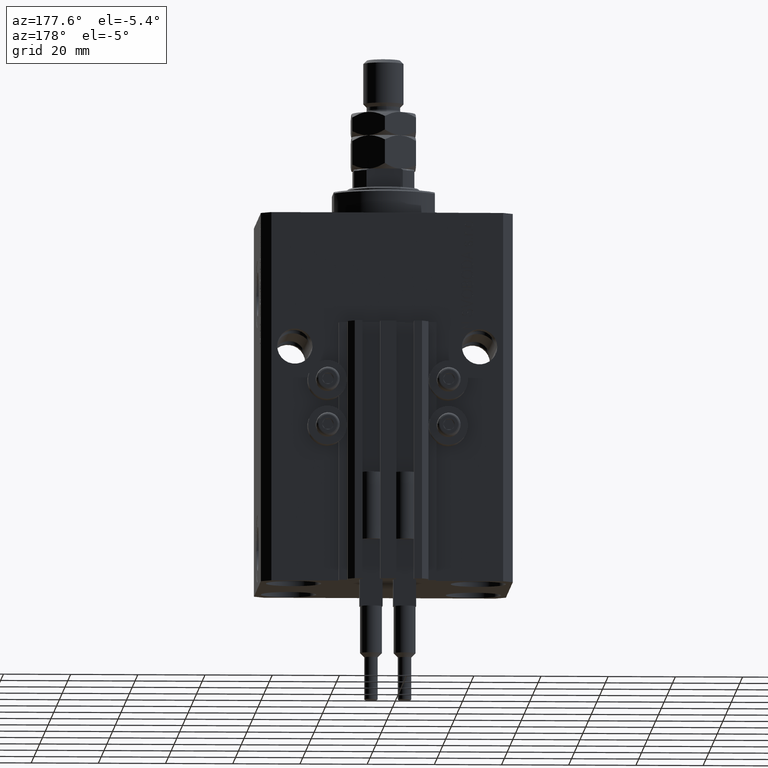
[diagram: clean part render]
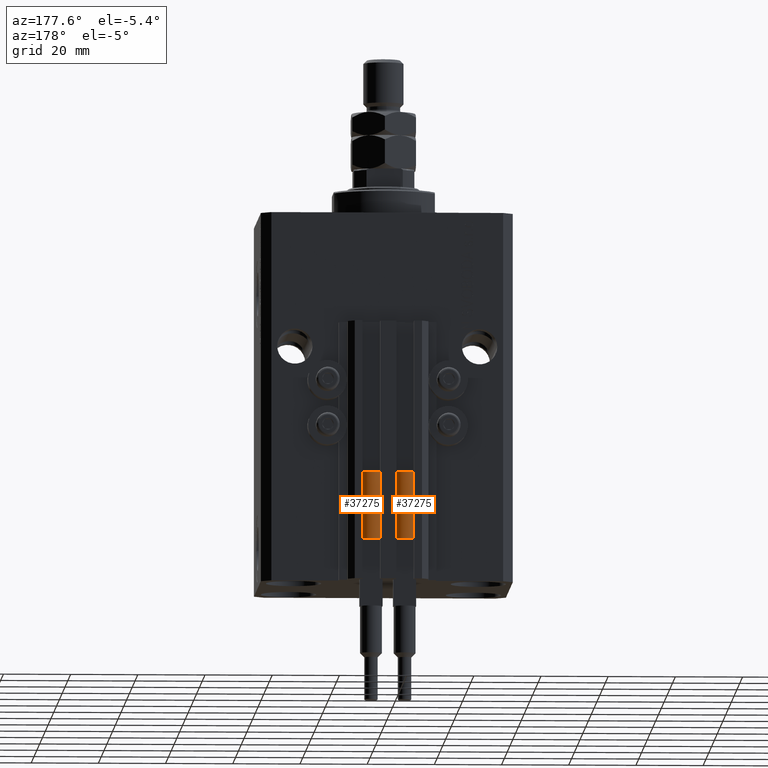
[diagram: same view with one multi-face feature highlighted, each face labeled with its STEP entity id]
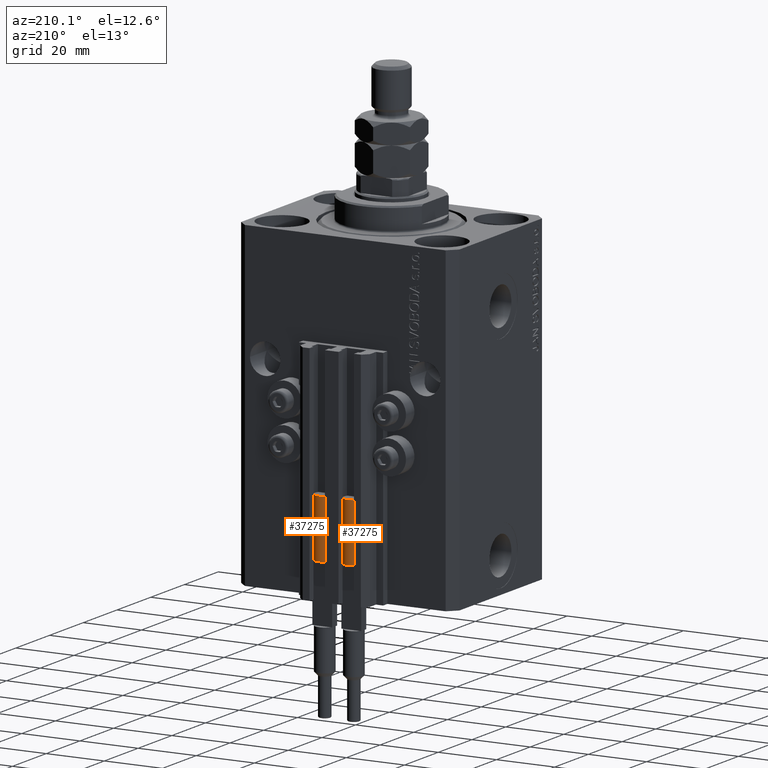
[diagram: same view with one multi-face feature highlighted, each face labeled with its STEP entity id]
A machine part, auxiliary view. The highlighted faces form ONE feature: a constant-radius fillet chain: 2 tangent blend faces with common blend radius 3.4 mm. The faces share edges in the B-rep.
A second angle (auxiliary view) of the same feature is appended — it is thin or edge-on in the first view.
Their STEP definitions:
[1] entity #37275 (Cylinder):
#277 = EDGE_CURVE ( 'NONE', #16009, #9318, #6467, .T. ) ;
#964 = EDGE_LOOP ( 'NONE', ( #36881, #6690, #20043, #19111, #27032, #32500 ) ) ;
#1889 = AXIS2_PLACEMENT_3D ( 'NONE', #15440, #15673, #4585 ) ;
#3016 = CARTESIAN_POINT ( 'NONE',  ( -3.400000000000000355, 0.000000000000000000, 20.00000000000000000 ) ) ;
#4585 = DIRECTION ( 'NONE',  ( 1.000000000000000000, 0.000000000000000000, 0.000000000000000000 ) ) ;
#4820 = EDGE_CURVE ( 'NONE', #13927, #31723, #48918, .T. ) ;
#5131 = AXIS2_PLACEMENT_3D ( 'NONE', #12338, #39536, #43302 ) ;
#6467 = CIRCLE ( 'NONE', #19312, 3.400000000000000355 ) ;
#6558 = LINE ( 'NONE', #3016, #17719 ) ;
#6690 = ORIENTED_EDGE ( 'NONE', *, *, #4820, .T. ) ;
#7794 = EDGE_CURVE ( 'NONE', #29452, #16009, #26809, .T. ) ;
#8283 = EDGE_CURVE ( 'NONE', #13927, #29452, #29243, .T. ) ;
#9318 = VERTEX_POINT ( 'NONE', #25623 ) ;
#10219 = EDGE_CURVE ( 'NONE', #31723, #48515, #43014, .T. ) ;
#10681 = DIRECTION ( 'NONE',  ( -0.000000000000000000, -0.000000000000000000, -1.000000000000000000 ) ) ;
#11427 = CARTESIAN_POINT ( 'NONE',  ( 3.400000000000000355, 4.163799117101001052E-16, 20.00000000000000000 ) ) ;
#12202 = DIRECTION ( 'NONE',  ( 0.000000000000000000, 0.000000000000000000, 1.000000000000000000 ) ) ;
#12338 = CARTESIAN_POINT ( 'NONE',  ( 0.000000000000000000, 0.000000000000000000, 20.00000000000000000 ) ) ;
#13135 = CARTESIAN_POINT ( 'NONE',  ( 3.400000000000000355, 4.163799117101001052E-16, 0.000000000000000000 ) ) ;
#13927 = VERTEX_POINT ( 'NONE', #42578 ) ;
#13990 = VECTOR ( 'NONE', #10681, 1000.000000000000000 ) ;
#15440 = CARTESIAN_POINT ( 'NONE',  ( 0.000000000000000000, 0.000000000000000000, 20.00000000000000000 ) ) ;
#15673 = DIRECTION ( 'NONE',  ( 0.000000000000000000, 0.000000000000000000, 1.000000000000000000 ) ) ;
#16009 = VERTEX_POINT ( 'NONE', #25913 ) ;
#17582 = CARTESIAN_POINT ( 'NONE',  ( 0.000000000000000000, 0.000000000000000000, 20.00000000000000000 ) ) ;
#17719 = VECTOR ( 'NONE', #21891, 1000.000000000000000 ) ;
#19111 = ORIENTED_EDGE ( 'NONE', *, *, #44092, .F. ) ;
#19312 = AXIS2_PLACEMENT_3D ( 'NONE', #46671, #12202, #39147 ) ;
#20043 = ORIENTED_EDGE ( 'NONE', *, *, #10219, .T. ) ;
#21184 = DIRECTION ( 'NONE',  ( 0.000000000000000000, 0.000000000000000000, 1.000000000000000000 ) ) ;
#21891 = DIRECTION ( 'NONE',  ( -0.000000000000000000, -0.000000000000000000, -1.000000000000000000 ) ) ;
#25373 = FACE_OUTER_BOUND ( 'NONE', #964, .T. ) ;
#25623 = CARTESIAN_POINT ( 'NONE',  ( -3.399999999999999467, -4.915049848600952119E-16, 20.00000000000000000 ) ) ;
#25913 = CARTESIAN_POINT ( 'NONE',  ( -3.051229260478471428, 1.500000000000000000, 20.00000000000000000 ) ) ;
#26322 = AXIS2_PLACEMENT_3D ( 'NONE', #17582, #36495, #47778 ) ;
#26809 = CIRCLE ( 'NONE', #1889, 3.400000000000000355 ) ;
#27032 = ORIENTED_EDGE ( 'NONE', *, *, #277, .F. ) ;
#29243 = CIRCLE ( 'NONE', #5131, 3.400000000000000355 ) ;
#29452 = VERTEX_POINT ( 'NONE', #38047 ) ;
#31723 = VERTEX_POINT ( 'NONE', #13135 ) ;
#32500 = ORIENTED_EDGE ( 'NONE', *, *, #7794, .F. ) ;
#32531 = CARTESIAN_POINT ( 'NONE',  ( 0.000000000000000000, 0.000000000000000000, 0.000000000000000000 ) ) ;
#33288 = DIRECTION ( 'NONE',  ( 1.000000000000000000, 0.000000000000000000, 0.000000000000000000 ) ) ;
#36495 = DIRECTION ( 'NONE',  ( -0.000000000000000000, -0.000000000000000000, -1.000000000000000000 ) ) ;
#36881 = ORIENTED_EDGE ( 'NONE', *, *, #8283, .F. ) ;
#37275 = ADVANCED_FACE ( 'NONE', ( #25373 ), #40765, .T. ) ;
#38047 = CARTESIAN_POINT ( 'NONE',  ( 3.051229260478471428, 1.500000000000000000, 20.00000000000000000 ) ) ;
#39147 = DIRECTION ( 'NONE',  ( 1.000000000000000000, 0.000000000000000000, 0.000000000000000000 ) ) ;
#39536 = DIRECTION ( 'NONE',  ( 0.000000000000000000, 0.000000000000000000, 1.000000000000000000 ) ) ;
#40765 = CYLINDRICAL_SURFACE ( 'NONE', #26322, 3.400000000000000355 ) ;
#42207 = AXIS2_PLACEMENT_3D ( 'NONE', #32531, #21184, #33288 ) ;
#42578 = CARTESIAN_POINT ( 'NONE',  ( 3.400000000000000355, 0.000000000000000000, 20.00000000000000000 ) ) ;
#43014 = CIRCLE ( 'NONE', #42207, 3.400000000000000355 ) ;
#43302 = DIRECTION ( 'NONE',  ( 1.000000000000000000, 0.000000000000000000, 0.000000000000000000 ) ) ;
#44092 = EDGE_CURVE ( 'NONE', #9318, #48515, #6558, .T. ) ;
#46671 = CARTESIAN_POINT ( 'NONE',  ( 0.000000000000000000, 0.000000000000000000, 20.00000000000000000 ) ) ;
#47778 = DIRECTION ( 'NONE',  ( -1.000000000000000000, 0.000000000000000000, 0.000000000000000000 ) ) ;
#48515 = VERTEX_POINT ( 'NONE', #48599 ) ;
#48599 = CARTESIAN_POINT ( 'NONE',  ( -3.400000000000000355, 0.000000000000000000, 0.000000000000000000 ) ) ;
#48918 = LINE ( 'NONE', #11427, #13990 ) ;
[2] entity #37275 (Cylinder):
#277 = EDGE_CURVE ( 'NONE', #16009, #9318, #6467, .T. ) ;
#964 = EDGE_LOOP ( 'NONE', ( #36881, #6690, #20043, #19111, #27032, #32500 ) ) ;
#1889 = AXIS2_PLACEMENT_3D ( 'NONE', #15440, #15673, #4585 ) ;
#3016 = CARTESIAN_POINT ( 'NONE',  ( -3.400000000000000355, 0.000000000000000000, 20.00000000000000000 ) ) ;
#4585 = DIRECTION ( 'NONE',  ( 1.000000000000000000, 0.000000000000000000, 0.000000000000000000 ) ) ;
#4820 = EDGE_CURVE ( 'NONE', #13927, #31723, #48918, .T. ) ;
#5131 = AXIS2_PLACEMENT_3D ( 'NONE', #12338, #39536, #43302 ) ;
#6467 = CIRCLE ( 'NONE', #19312, 3.400000000000000355 ) ;
#6558 = LINE ( 'NONE', #3016, #17719 ) ;
#6690 = ORIENTED_EDGE ( 'NONE', *, *, #4820, .T. ) ;
#7794 = EDGE_CURVE ( 'NONE', #29452, #16009, #26809, .T. ) ;
#8283 = EDGE_CURVE ( 'NONE', #13927, #29452, #29243, .T. ) ;
#9318 = VERTEX_POINT ( 'NONE', #25623 ) ;
#10219 = EDGE_CURVE ( 'NONE', #31723, #48515, #43014, .T. ) ;
#10681 = DIRECTION ( 'NONE',  ( -0.000000000000000000, -0.000000000000000000, -1.000000000000000000 ) ) ;
#11427 = CARTESIAN_POINT ( 'NONE',  ( 3.400000000000000355, 4.163799117101001052E-16, 20.00000000000000000 ) ) ;
#12202 = DIRECTION ( 'NONE',  ( 0.000000000000000000, 0.000000000000000000, 1.000000000000000000 ) ) ;
#12338 = CARTESIAN_POINT ( 'NONE',  ( 0.000000000000000000, 0.000000000000000000, 20.00000000000000000 ) ) ;
#13135 = CARTESIAN_POINT ( 'NONE',  ( 3.400000000000000355, 4.163799117101001052E-16, 0.000000000000000000 ) ) ;
#13927 = VERTEX_POINT ( 'NONE', #42578 ) ;
#13990 = VECTOR ( 'NONE', #10681, 1000.000000000000000 ) ;
#15440 = CARTESIAN_POINT ( 'NONE',  ( 0.000000000000000000, 0.000000000000000000, 20.00000000000000000 ) ) ;
#15673 = DIRECTION ( 'NONE',  ( 0.000000000000000000, 0.000000000000000000, 1.000000000000000000 ) ) ;
#16009 = VERTEX_POINT ( 'NONE', #25913 ) ;
#17582 = CARTESIAN_POINT ( 'NONE',  ( 0.000000000000000000, 0.000000000000000000, 20.00000000000000000 ) ) ;
#17719 = VECTOR ( 'NONE', #21891, 1000.000000000000000 ) ;
#19111 = ORIENTED_EDGE ( 'NONE', *, *, #44092, .F. ) ;
#19312 = AXIS2_PLACEMENT_3D ( 'NONE', #46671, #12202, #39147 ) ;
#20043 = ORIENTED_EDGE ( 'NONE', *, *, #10219, .T. ) ;
#21184 = DIRECTION ( 'NONE',  ( 0.000000000000000000, 0.000000000000000000, 1.000000000000000000 ) ) ;
#21891 = DIRECTION ( 'NONE',  ( -0.000000000000000000, -0.000000000000000000, -1.000000000000000000 ) ) ;
#25373 = FACE_OUTER_BOUND ( 'NONE', #964, .T. ) ;
#25623 = CARTESIAN_POINT ( 'NONE',  ( -3.399999999999999467, -4.915049848600952119E-16, 20.00000000000000000 ) ) ;
#25913 = CARTESIAN_POINT ( 'NONE',  ( -3.051229260478471428, 1.500000000000000000, 20.00000000000000000 ) ) ;
#26322 = AXIS2_PLACEMENT_3D ( 'NONE', #17582, #36495, #47778 ) ;
#26809 = CIRCLE ( 'NONE', #1889, 3.400000000000000355 ) ;
#27032 = ORIENTED_EDGE ( 'NONE', *, *, #277, .F. ) ;
#29243 = CIRCLE ( 'NONE', #5131, 3.400000000000000355 ) ;
#29452 = VERTEX_POINT ( 'NONE', #38047 ) ;
#31723 = VERTEX_POINT ( 'NONE', #13135 ) ;
#32500 = ORIENTED_EDGE ( 'NONE', *, *, #7794, .F. ) ;
#32531 = CARTESIAN_POINT ( 'NONE',  ( 0.000000000000000000, 0.000000000000000000, 0.000000000000000000 ) ) ;
#33288 = DIRECTION ( 'NONE',  ( 1.000000000000000000, 0.000000000000000000, 0.000000000000000000 ) ) ;
#36495 = DIRECTION ( 'NONE',  ( -0.000000000000000000, -0.000000000000000000, -1.000000000000000000 ) ) ;
#36881 = ORIENTED_EDGE ( 'NONE', *, *, #8283, .F. ) ;
#37275 = ADVANCED_FACE ( 'NONE', ( #25373 ), #40765, .T. ) ;
#38047 = CARTESIAN_POINT ( 'NONE',  ( 3.051229260478471428, 1.500000000000000000, 20.00000000000000000 ) ) ;
#39147 = DIRECTION ( 'NONE',  ( 1.000000000000000000, 0.000000000000000000, 0.000000000000000000 ) ) ;
#39536 = DIRECTION ( 'NONE',  ( 0.000000000000000000, 0.000000000000000000, 1.000000000000000000 ) ) ;
#40765 = CYLINDRICAL_SURFACE ( 'NONE', #26322, 3.400000000000000355 ) ;
#42207 = AXIS2_PLACEMENT_3D ( 'NONE', #32531, #21184, #33288 ) ;
#42578 = CARTESIAN_POINT ( 'NONE',  ( 3.400000000000000355, 0.000000000000000000, 20.00000000000000000 ) ) ;
#43014 = CIRCLE ( 'NONE', #42207, 3.400000000000000355 ) ;
#43302 = DIRECTION ( 'NONE',  ( 1.000000000000000000, 0.000000000000000000, 0.000000000000000000 ) ) ;
#44092 = EDGE_CURVE ( 'NONE', #9318, #48515, #6558, .T. ) ;
#46671 = CARTESIAN_POINT ( 'NONE',  ( 0.000000000000000000, 0.000000000000000000, 20.00000000000000000 ) ) ;
#47778 = DIRECTION ( 'NONE',  ( -1.000000000000000000, 0.000000000000000000, 0.000000000000000000 ) ) ;
#48515 = VERTEX_POINT ( 'NONE', #48599 ) ;
#48599 = CARTESIAN_POINT ( 'NONE',  ( -3.400000000000000355, 0.000000000000000000, 0.000000000000000000 ) ) ;
#48918 = LINE ( 'NONE', #11427, #13990 ) ;